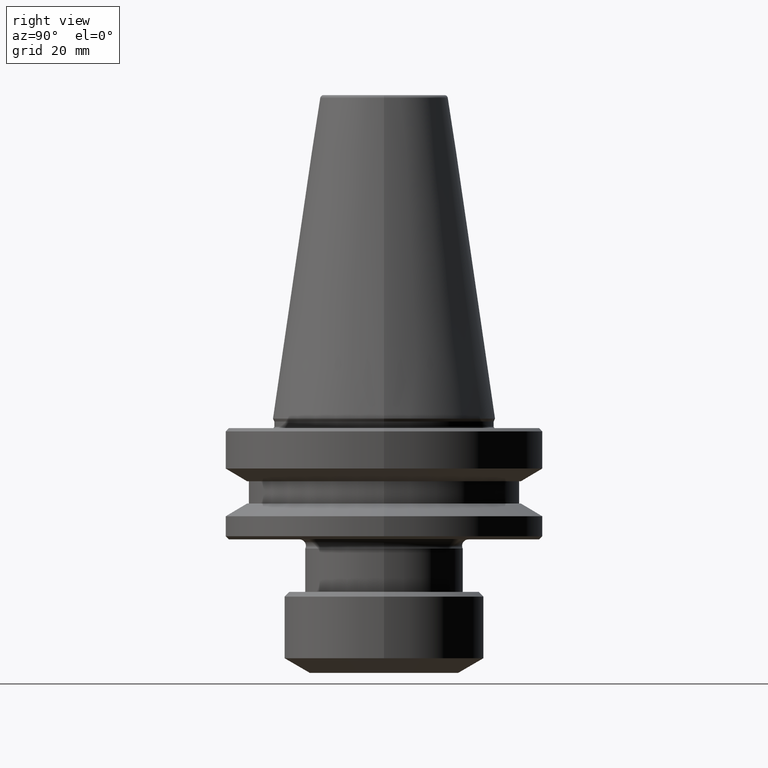
[diagram: clean part render]
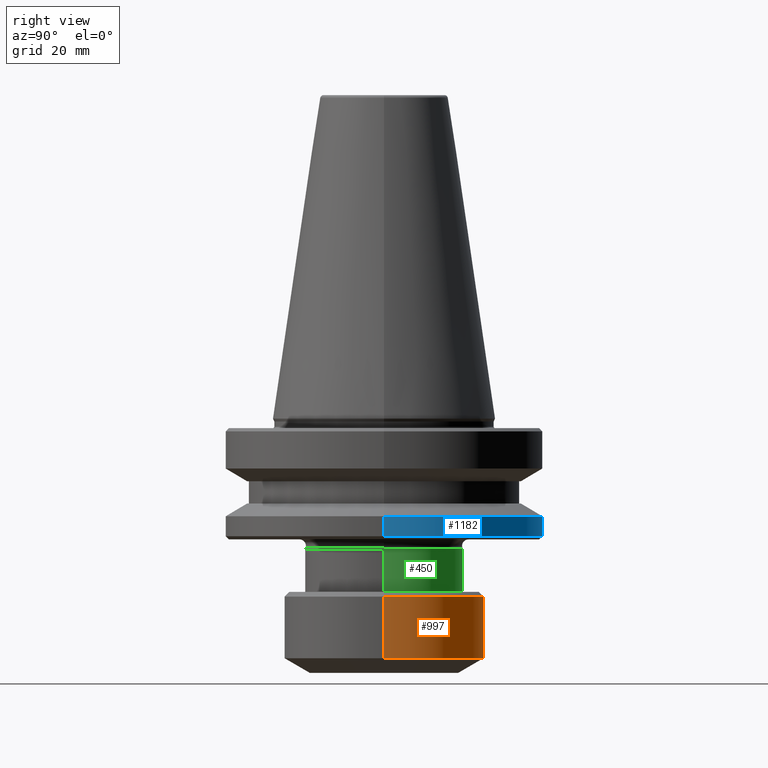
[diagram: same view with three faces highlighted in distinct colors, each labeled with its STEP entity id]
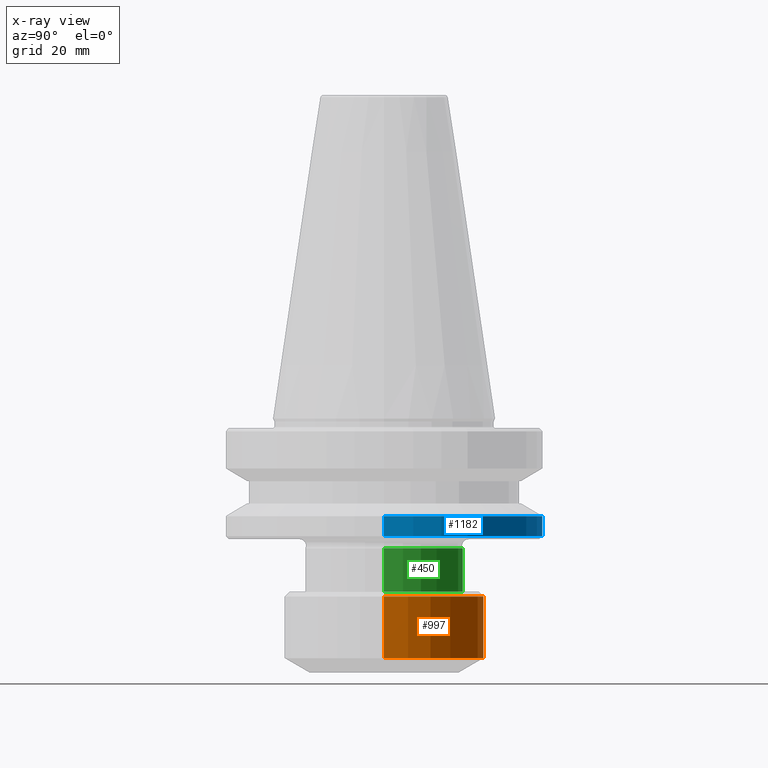
[diagram: x-ray of the same camera — body ghosted, the three highlighted faces saturated]
A machine part, right view with three faces highlighted in distinct colors.
The next image is the same camera in x-ray (body ghosted, the three faces saturated) — at least one of them is partly hidden behind the body in this view.
Their STEP definitions:

[orange] entity #997 — the highlighted cylindrical surface (partial cylindrical patch) has radius 31.5 mm, axis along (-0, -0, 1).
#5 = VERTEX_POINT ( 'NONE', #573 ) ;
#47 = CIRCLE ( 'NONE', #251, 31.50000000007187500 ) ;
#56 = VERTEX_POINT ( 'NONE', #1053 ) ;
#141 = CARTESIAN_POINT ( 'NONE',  ( 0.0000000000000000000, 0.0000000000000000000, -75.37764622651069100 ) ) ;
#178 = DIRECTION ( 'NONE',  ( -0.0000000000000000000, -0.0000000000000000000, 1.000000000000000000 ) ) ;
#232 = DIRECTION ( 'NONE',  ( 1.000000000000000000, 0.0000000000000000000, 0.0000000000000000000 ) ) ;
#234 = ORIENTED_EDGE ( 'NONE', *, *, #762, .T. ) ;
#251 = AXIS2_PLACEMENT_3D ( 'NONE', #713, #178, #805 ) ;
#300 = CARTESIAN_POINT ( 'NONE',  ( -31.50000000007187500, 3.857637417322964800E-015, 126.8415175018036600 ) ) ;
#344 = ORIENTED_EDGE ( 'NONE', *, *, #867, .F. ) ;
#357 = CARTESIAN_POINT ( 'NONE',  ( 0.0000000000000000000, 0.0000000000000000000, 126.8415175018036600 ) ) ;
#371 = ORIENTED_EDGE ( 'NONE', *, *, #492, .T. ) ;
#376 = VECTOR ( 'NONE', #596, 1000.000000000000000 ) ;
#404 = LINE ( 'NONE', #976, #376 ) ;
#440 = DIRECTION ( 'NONE',  ( 1.000000000000000000, 0.0000000000000000000, 0.0000000000000000000 ) ) ;
#492 = EDGE_CURVE ( 'NONE', #56, #5, #999, .T. ) ;
#540 = VERTEX_POINT ( 'NONE', #791 ) ;
#573 = CARTESIAN_POINT ( 'NONE',  ( -31.50000000007187500, 3.857637417322964800E-015, -55.99644838011069900 ) ) ;
#586 = AXIS2_PLACEMENT_3D ( 'NONE', #357, #622, #440 ) ;
#596 = DIRECTION ( 'NONE',  ( -0.0000000000000000000, -0.0000000000000000000, 1.000000000000000000 ) ) ;
#622 = DIRECTION ( 'NONE',  ( -0.0000000000000000000, -0.0000000000000000000, 1.000000000000000000 ) ) ;
#698 = ORIENTED_EDGE ( 'NONE', *, *, #995, .F. ) ;
#713 = CARTESIAN_POINT ( 'NONE',  ( 0.0000000000000000000, 0.0000000000000000000, -55.99644838011069900 ) ) ;
#716 = VECTOR ( 'NONE', #848, 1000.000000000000000 ) ;
#741 = FACE_OUTER_BOUND ( 'NONE', #1086, .T. ) ;
#762 = EDGE_CURVE ( 'NONE', #540, #56, #781, .T. ) ;
#767 = DIRECTION ( 'NONE',  ( -0.0000000000000000000, -0.0000000000000000000, 1.000000000000000000 ) ) ;
#781 = CIRCLE ( 'NONE', #1153, 31.50000000007187500 ) ;
#791 = CARTESIAN_POINT ( 'NONE',  ( 31.50000000007187500, 0.0000000000000000000, -75.37764622651069100 ) ) ;
#805 = DIRECTION ( 'NONE',  ( 1.000000000000000000, 0.0000000000000000000, 0.0000000000000000000 ) ) ;
#848 = DIRECTION ( 'NONE',  ( -0.0000000000000000000, -0.0000000000000000000, 1.000000000000000000 ) ) ;
#867 = EDGE_CURVE ( 'NONE', #540, #1001, #404, .T. ) ;
#904 = CARTESIAN_POINT ( 'NONE',  ( 31.50000000007187500, 0.0000000000000000000, -55.99644838011069900 ) ) ;
#956 = CYLINDRICAL_SURFACE ( 'NONE', #586, 31.50000000007187500 ) ;
#976 = CARTESIAN_POINT ( 'NONE',  ( 31.50000000007187500, 0.0000000000000000000, 126.8415175018036600 ) ) ;
#995 = EDGE_CURVE ( 'NONE', #1001, #5, #47, .T. ) ;
#997 = ADVANCED_FACE ( 'NONE', ( #741 ), #956, .T. ) ;
#999 = LINE ( 'NONE', #300, #716 ) ;
#1001 = VERTEX_POINT ( 'NONE', #904 ) ;
#1053 = CARTESIAN_POINT ( 'NONE',  ( -31.50000000007187500, 3.857637417322964800E-015, -75.37764622651069100 ) ) ;
#1086 = EDGE_LOOP ( 'NONE', ( #234, #371, #698, #344 ) ) ;
#1153 = AXIS2_PLACEMENT_3D ( 'NONE', #141, #767, #232 ) ;

[blue] entity #1182 — the highlighted cylindrical surface (partial cylindrical patch) has radius 50 mm, axis along (-0, -0, 1).
#68 = VERTEX_POINT ( 'NONE', #517 ) ;
#69 = AXIS2_PLACEMENT_3D ( 'NONE', #387, #474, #938 ) ;
#135 = VERTEX_POINT ( 'NONE', #929 ) ;
#195 = EDGE_CURVE ( 'NONE', #273, #883, #238, .T. ) ;
#238 = LINE ( 'NONE', #1077, #691 ) ;
#259 = ORIENTED_EDGE ( 'NONE', *, *, #737, .T. ) ;
#273 = VERTEX_POINT ( 'NONE', #428 ) ;
#292 = LINE ( 'NONE', #991, #993 ) ;
#296 = FACE_OUTER_BOUND ( 'NONE', #571, .T. ) ;
#335 = CARTESIAN_POINT ( 'NONE',  ( -49.99999999999993600, 6.123233995736758200E-015, -30.69977999677488300 ) ) ;
#345 = CARTESIAN_POINT ( 'NONE',  ( 0.0000000000000000000, 0.0000000000000000000, -30.69977999677488300 ) ) ;
#349 = DIRECTION ( 'NONE',  ( -0.0000000000000000000, -0.0000000000000000000, 1.000000000000000000 ) ) ;
#387 = CARTESIAN_POINT ( 'NONE',  ( 0.0000000000000000000, 0.0000000000000000000, 112.0003022282018300 ) ) ;
#403 = DIRECTION ( 'NONE',  ( -0.0000000000000000000, -0.0000000000000000000, 1.000000000000000000 ) ) ;
#428 = CARTESIAN_POINT ( 'NONE',  ( -49.99999999999993600, 6.123233995736758200E-015, -37.00000000000182600 ) ) ;
#432 = DIRECTION ( 'NONE',  ( 1.000000000000000000, 0.0000000000000000000, 0.0000000000000000000 ) ) ;
#435 = AXIS2_PLACEMENT_3D ( 'NONE', #955, #403, #1038 ) ;
#474 = DIRECTION ( 'NONE',  ( -0.0000000000000000000, -0.0000000000000000000, 1.000000000000000000 ) ) ;
#485 = AXIS2_PLACEMENT_3D ( 'NONE', #345, #980, #432 ) ;
#517 = CARTESIAN_POINT ( 'NONE',  ( 49.99999999999993600, 0.0000000000000000000, -37.00000000000182600 ) ) ;
#568 = ORIENTED_EDGE ( 'NONE', *, *, #195, .T. ) ;
#571 = EDGE_LOOP ( 'NONE', ( #259, #568, #580, #646 ) ) ;
#580 = ORIENTED_EDGE ( 'NONE', *, *, #907, .F. ) ;
#581 = CIRCLE ( 'NONE', #485, 49.99999999999993600 ) ;
#646 = ORIENTED_EDGE ( 'NONE', *, *, #981, .F. ) ;
#691 = VECTOR ( 'NONE', #844, 1000.000000000000000 ) ;
#737 = EDGE_CURVE ( 'NONE', #68, #273, #1056, .T. ) ;
#844 = DIRECTION ( 'NONE',  ( -0.0000000000000000000, -0.0000000000000000000, 1.000000000000000000 ) ) ;
#883 = VERTEX_POINT ( 'NONE', #335 ) ;
#907 = EDGE_CURVE ( 'NONE', #135, #883, #581, .T. ) ;
#929 = CARTESIAN_POINT ( 'NONE',  ( 49.99999999999993600, 0.0000000000000000000, -30.69977999677488300 ) ) ;
#938 = DIRECTION ( 'NONE',  ( 1.000000000000000000, 0.0000000000000000000, 0.0000000000000000000 ) ) ;
#955 = CARTESIAN_POINT ( 'NONE',  ( 0.0000000000000000000, 0.0000000000000000000, -37.00000000000182600 ) ) ;
#980 = DIRECTION ( 'NONE',  ( -0.0000000000000000000, -0.0000000000000000000, 1.000000000000000000 ) ) ;
#981 = EDGE_CURVE ( 'NONE', #68, #135, #292, .T. ) ;
#991 = CARTESIAN_POINT ( 'NONE',  ( 49.99999999999993600, 0.0000000000000000000, 112.0003022282018300 ) ) ;
#993 = VECTOR ( 'NONE', #349, 1000.000000000000000 ) ;
#1018 = CYLINDRICAL_SURFACE ( 'NONE', #69, 49.99999999999993600 ) ;
#1038 = DIRECTION ( 'NONE',  ( 1.000000000000000000, 0.0000000000000000000, 0.0000000000000000000 ) ) ;
#1056 = CIRCLE ( 'NONE', #435, 49.99999999999993600 ) ;
#1077 = CARTESIAN_POINT ( 'NONE',  ( -49.99999999999993600, 6.123233995736758200E-015, 112.0003022282018300 ) ) ;
#1182 = ADVANCED_FACE ( 'NONE', ( #296 ), #1018, .T. ) ;

[green] entity #450 — the highlighted cylindrical surface (partial cylindrical patch) has radius 24.95 mm, axis along (-0, -0, 1).
#28 = VERTEX_POINT ( 'NONE', #186 ) ;
#42 = VERTEX_POINT ( 'NONE', #1124 ) ;
#43 = CARTESIAN_POINT ( 'NONE',  ( -24.94999999999980400, 3.055493763872622300E-015, 112.0003022282018300 ) ) ;
#70 = DIRECTION ( 'NONE',  ( -1.000000000000000000, 0.0000000000000000000, 0.0000000000000000000 ) ) ;
#78 = CYLINDRICAL_SURFACE ( 'NONE', #173, 24.94999999999980400 ) ;
#80 = ORIENTED_EDGE ( 'NONE', *, *, #1028, .F. ) ;
#105 = ORIENTED_EDGE ( 'NONE', *, *, #1080, .F. ) ;
#112 = DIRECTION ( 'NONE',  ( -0.0000000000000000000, -0.0000000000000000000, 1.000000000000000000 ) ) ;
#150 = VERTEX_POINT ( 'NONE', #446 ) ;
#153 = EDGE_CURVE ( 'NONE', #28, #275, #270, .T. ) ;
#165 = LINE ( 'NONE', #199, #1092 ) ;
#173 = AXIS2_PLACEMENT_3D ( 'NONE', #1171, #112, #424 ) ;
#186 = CARTESIAN_POINT ( 'NONE',  ( -24.94999999999980400, 3.055493763872622300E-015, -54.49644838011070600 ) ) ;
#199 = CARTESIAN_POINT ( 'NONE',  ( 24.94999999999980400, 0.0000000000000000000, 112.0003022282018300 ) ) ;
#262 = CARTESIAN_POINT ( 'NONE',  ( 0.0000000000000000000, 0.0000000000000000000, -54.49644838011070600 ) ) ;
#270 = CIRCLE ( 'NONE', #315, 24.94999999999980400 ) ;
#275 = VERTEX_POINT ( 'NONE', #529 ) ;
#276 = DIRECTION ( 'NONE',  ( 0.0000000000000000000, 0.0000000000000000000, -1.000000000000000000 ) ) ;
#315 = AXIS2_PLACEMENT_3D ( 'NONE', #262, #276, #70 ) ;
#322 = DIRECTION ( 'NONE',  ( -0.0000000000000000000, -0.0000000000000000000, 1.000000000000000000 ) ) ;
#356 = FACE_OUTER_BOUND ( 'NONE', #363, .T. ) ;
#363 = EDGE_LOOP ( 'NONE', ( #827, #1066, #80, #105 ) ) ;
#424 = DIRECTION ( 'NONE',  ( 1.000000000000000000, 0.0000000000000000000, 0.0000000000000000000 ) ) ;
#433 = CIRCLE ( 'NONE', #598, 24.94999999999980400 ) ;
#446 = CARTESIAN_POINT ( 'NONE',  ( 24.94999999999980400, 0.0000000000000000000, -40.87177978871038400 ) ) ;
#450 = ADVANCED_FACE ( 'NONE', ( #356 ), #78, .T. ) ;
#487 = VECTOR ( 'NONE', #322, 1000.000000000000000 ) ;
#529 = CARTESIAN_POINT ( 'NONE',  ( 24.94999999999980400, 0.0000000000000000000, -54.49644838011070600 ) ) ;
#548 = CARTESIAN_POINT ( 'NONE',  ( 0.0000000000000000000, 0.0000000000000000000, -40.87177978871038400 ) ) ;
#598 = AXIS2_PLACEMENT_3D ( 'NONE', #548, #1183, #635 ) ;
#635 = DIRECTION ( 'NONE',  ( 1.000000000000000000, 0.0000000000000000000, 0.0000000000000000000 ) ) ;
#724 = LINE ( 'NONE', #43, #487 ) ;
#727 = DIRECTION ( 'NONE',  ( -0.0000000000000000000, -0.0000000000000000000, 1.000000000000000000 ) ) ;
#775 = EDGE_CURVE ( 'NONE', #28, #42, #724, .T. ) ;
#827 = ORIENTED_EDGE ( 'NONE', *, *, #153, .F. ) ;
#1028 = EDGE_CURVE ( 'NONE', #150, #42, #433, .T. ) ;
#1066 = ORIENTED_EDGE ( 'NONE', *, *, #775, .T. ) ;
#1080 = EDGE_CURVE ( 'NONE', #275, #150, #165, .T. ) ;
#1092 = VECTOR ( 'NONE', #727, 1000.000000000000000 ) ;
#1124 = CARTESIAN_POINT ( 'NONE',  ( -24.94999999999980400, 3.055493763872622300E-015, -40.87177978871038400 ) ) ;
#1171 = CARTESIAN_POINT ( 'NONE',  ( 0.0000000000000000000, 0.0000000000000000000, 112.0003022282018300 ) ) ;
#1183 = DIRECTION ( 'NONE',  ( -0.0000000000000000000, -0.0000000000000000000, 1.000000000000000000 ) ) ;